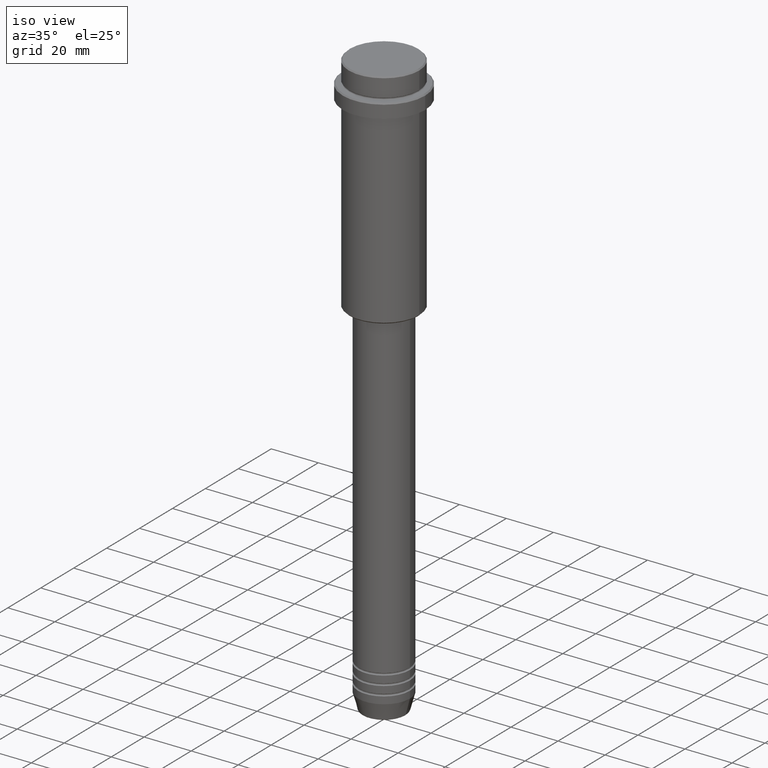
[diagram: clean part render]
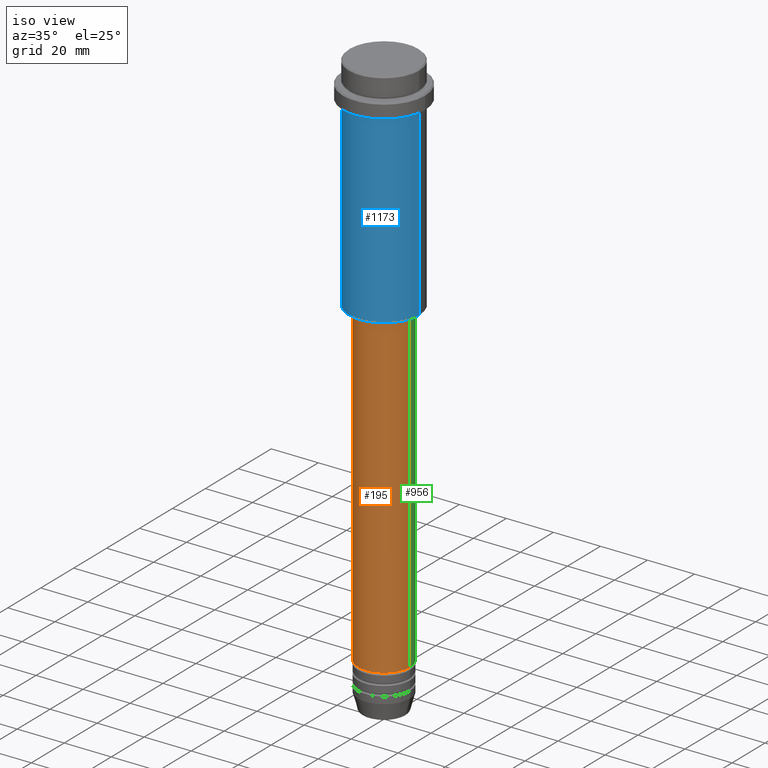
[diagram: same view with three faces highlighted in distinct colors, each labeled with its STEP entity id]
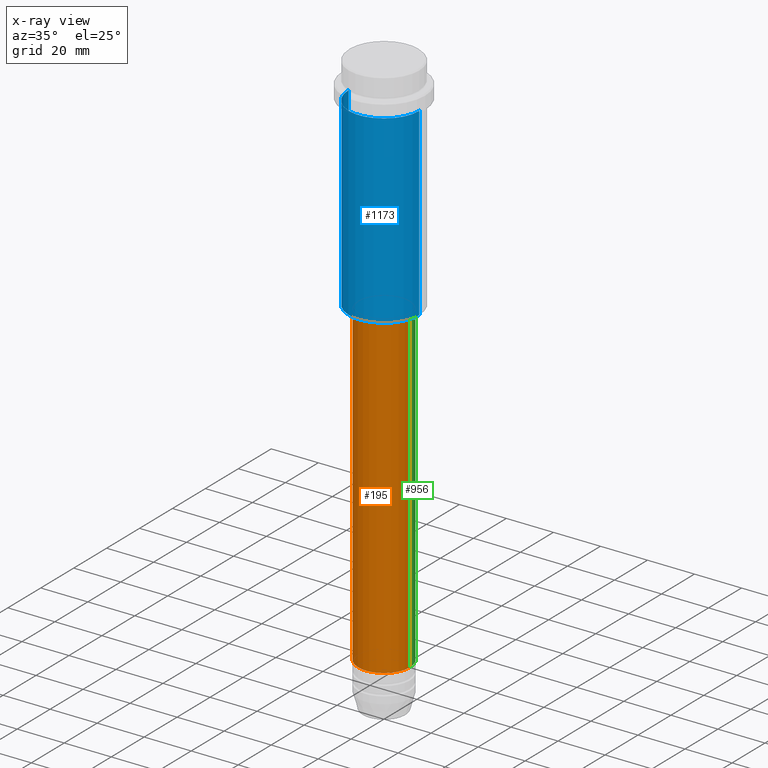
[diagram: x-ray of the same camera — body ghosted, the three highlighted faces saturated]
A machine part, iso view with three faces highlighted in distinct colors.
The next image is the same camera in x-ray (body ghosted, the three faces saturated) — at least one of them is partly hidden behind the body in this view.
Their STEP definitions:

[orange] entity #195 — the highlighted cylindrical surface (edge-blend (fillet) strip) has radius 11 mm, axis along (-0, -0, 1).
#6 = AXIS2_PLACEMENT_3D ( 'NONE', #1197, #1093, #968 ) ;
#62 = LINE ( 'NONE', #1245, #821 ) ;
#71 = ORIENTED_EDGE ( 'NONE', *, *, #422, .F. ) ;
#107 = CYLINDRICAL_SURFACE ( 'NONE', #1119, 11.00000000000000000 ) ;
#130 = VERTEX_POINT ( 'NONE', #740 ) ;
#134 = CIRCLE ( 'NONE', #714, 10.99999999999999822 ) ;
#152 = CARTESIAN_POINT ( 'NONE',  ( 11.00000000000000000, 0.000000000000000000, 0.000000000000000000 ) ) ;
#195 = ADVANCED_FACE ( 'NONE', ( #840 ), #107, .T. ) ;
#212 = DIRECTION ( 'NONE',  ( 1.000000000000000000, 0.000000000000000000, 0.000000000000000000 ) ) ;
#281 = EDGE_CURVE ( 'NONE', #1140, #1150, #134, .T. ) ;
#324 = VERTEX_POINT ( 'NONE', #578 ) ;
#343 = DIRECTION ( 'NONE',  ( 1.000000000000000000, 0.000000000000000000, 0.000000000000000000 ) ) ;
#360 = ORIENTED_EDGE ( 'NONE', *, *, #510, .T. ) ;
#397 = EDGE_LOOP ( 'NONE', ( #71, #1228, #360, #1355 ) ) ;
#407 = VECTOR ( 'NONE', #493, 1000.000000000000000 ) ;
#422 = EDGE_CURVE ( 'NONE', #324, #1140, #62, .T. ) ;
#464 = CARTESIAN_POINT ( 'NONE',  ( 10.99999999999999822, 0.000000000000000000, -96.00000000000000000 ) ) ;
#493 = DIRECTION ( 'NONE',  ( -0.000000000000000000, -0.000000000000000000, 1.000000000000000000 ) ) ;
#510 = EDGE_CURVE ( 'NONE', #130, #1150, #908, .T. ) ;
#568 = DIRECTION ( 'NONE',  ( -0.000000000000000000, -0.000000000000000000, 1.000000000000000000 ) ) ;
#578 = CARTESIAN_POINT ( 'NONE',  ( -11.00000000000000000, 1.347111479062088405E-15, -230.9999999999998863 ) ) ;
#714 = AXIS2_PLACEMENT_3D ( 'NONE', #886, #568, #343 ) ;
#740 = CARTESIAN_POINT ( 'NONE',  ( 11.00000000000000000, 0.000000000000000000, -230.9999999999998863 ) ) ;
#821 = VECTOR ( 'NONE', #1139, 1000.000000000000000 ) ;
#840 = FACE_OUTER_BOUND ( 'NONE', #397, .T. ) ;
#886 = CARTESIAN_POINT ( 'NONE',  ( 0.000000000000000000, 0.000000000000000000, -96.00000000000000000 ) ) ;
#900 = CARTESIAN_POINT ( 'NONE',  ( -10.99999999999999822, 1.347111479062088207E-15, -96.00000000000000000 ) ) ;
#908 = LINE ( 'NONE', #152, #407 ) ;
#968 = DIRECTION ( 'NONE',  ( 1.000000000000000000, 0.000000000000000000, 0.000000000000000000 ) ) ;
#1084 = EDGE_CURVE ( 'NONE', #324, #130, #1172, .T. ) ;
#1093 = DIRECTION ( 'NONE',  ( -0.000000000000000000, -0.000000000000000000, 1.000000000000000000 ) ) ;
#1119 = AXIS2_PLACEMENT_3D ( 'NONE', #1279, #1195, #212 ) ;
#1139 = DIRECTION ( 'NONE',  ( -0.000000000000000000, -0.000000000000000000, 1.000000000000000000 ) ) ;
#1140 = VERTEX_POINT ( 'NONE', #900 ) ;
#1150 = VERTEX_POINT ( 'NONE', #464 ) ;
#1172 = CIRCLE ( 'NONE', #6, 11.00000000000000000 ) ;
#1195 = DIRECTION ( 'NONE',  ( -0.000000000000000000, -0.000000000000000000, 1.000000000000000000 ) ) ;
#1197 = CARTESIAN_POINT ( 'NONE',  ( 0.000000000000000000, 0.000000000000000000, -230.9999999999998863 ) ) ;
#1228 = ORIENTED_EDGE ( 'NONE', *, *, #1084, .T. ) ;
#1245 = CARTESIAN_POINT ( 'NONE',  ( -11.00000000000000000, 1.347111479062088405E-15, 0.000000000000000000 ) ) ;
#1279 = CARTESIAN_POINT ( 'NONE',  ( 0.000000000000000000, 0.000000000000000000, 0.000000000000000000 ) ) ;
#1355 = ORIENTED_EDGE ( 'NONE', *, *, #281, .F. ) ;

[blue] entity #1173 — the highlighted cylindrical surface (partial cylindrical patch) has radius 15 mm, axis along (-0, -0, 1).
#14 = LINE ( 'NONE', #118, #1301 ) ;
#118 = CARTESIAN_POINT ( 'NONE',  ( -15.00000000000000000, 1.836970198721029589E-15, 0.000000000000000000 ) ) ;
#128 = EDGE_CURVE ( 'NONE', #335, #1292, #1410, .T. ) ;
#158 = CARTESIAN_POINT ( 'NONE',  ( 0.000000000000000000, 0.000000000000000000, -94.50000000000007105 ) ) ;
#174 = ORIENTED_EDGE ( 'NONE', *, *, #1068, .F. ) ;
#183 = CIRCLE ( 'NONE', #231, 15.00000000000000000 ) ;
#206 = DIRECTION ( 'NONE',  ( 1.000000000000000000, 0.000000000000000000, 0.000000000000000000 ) ) ;
#231 = AXIS2_PLACEMENT_3D ( 'NONE', #158, #1130, #361 ) ;
#243 = CARTESIAN_POINT ( 'NONE',  ( 0.000000000000000000, 0.000000000000000000, 0.000000000000000000 ) ) ;
#265 = CARTESIAN_POINT ( 'NONE',  ( -15.00000000000000000, 1.836970198721029589E-15, -94.50000000000007105 ) ) ;
#284 = EDGE_CURVE ( 'NONE', #1242, #624, #14, .T. ) ;
#302 = CARTESIAN_POINT ( 'NONE',  ( 15.00000000000000000, 0.000000000000000000, 0.000000000000000000 ) ) ;
#328 = DIRECTION ( 'NONE',  ( -0.000000000000000000, -0.000000000000000000, 1.000000000000000000 ) ) ;
#335 = VERTEX_POINT ( 'NONE', #680 ) ;
#361 = DIRECTION ( 'NONE',  ( -1.000000000000000000, 0.000000000000000000, 0.000000000000000000 ) ) ;
#432 = AXIS2_PLACEMENT_3D ( 'NONE', #1202, #1188, #206 ) ;
#603 = CARTESIAN_POINT ( 'NONE',  ( 15.00000000000000178, 0.000000000000000000, -16.00000000000000000 ) ) ;
#624 = VERTEX_POINT ( 'NONE', #957 ) ;
#631 = DIRECTION ( 'NONE',  ( -0.000000000000000000, -0.000000000000000000, 1.000000000000000000 ) ) ;
#680 = CARTESIAN_POINT ( 'NONE',  ( 15.00000000000000000, 0.000000000000000000, -94.50000000000007105 ) ) ;
#776 = EDGE_CURVE ( 'NONE', #1242, #335, #183, .T. ) ;
#801 = CYLINDRICAL_SURFACE ( 'NONE', #1214, 15.00000000000000000 ) ;
#808 = ORIENTED_EDGE ( 'NONE', *, *, #128, .T. ) ;
#957 = CARTESIAN_POINT ( 'NONE',  ( -15.00000000000000355, 1.836970198721029983E-15, -16.00000000000000000 ) ) ;
#1054 = CIRCLE ( 'NONE', #432, 15.00000000000000178 ) ;
#1068 = EDGE_CURVE ( 'NONE', #624, #1292, #1054, .T. ) ;
#1111 = DIRECTION ( 'NONE',  ( -0.000000000000000000, -0.000000000000000000, 1.000000000000000000 ) ) ;
#1115 = ORIENTED_EDGE ( 'NONE', *, *, #284, .F. ) ;
#1126 = DIRECTION ( 'NONE',  ( 1.000000000000000000, 0.000000000000000000, 0.000000000000000000 ) ) ;
#1130 = DIRECTION ( 'NONE',  ( -0.000000000000000000, -0.000000000000000000, 1.000000000000000000 ) ) ;
#1156 = EDGE_LOOP ( 'NONE', ( #1115, #1232, #808, #174 ) ) ;
#1166 = VECTOR ( 'NONE', #631, 1000.000000000000000 ) ;
#1173 = ADVANCED_FACE ( 'NONE', ( #1335 ), #801, .T. ) ;
#1188 = DIRECTION ( 'NONE',  ( -0.000000000000000000, -0.000000000000000000, 1.000000000000000000 ) ) ;
#1202 = CARTESIAN_POINT ( 'NONE',  ( 0.000000000000000000, 0.000000000000000000, -16.00000000000000000 ) ) ;
#1214 = AXIS2_PLACEMENT_3D ( 'NONE', #243, #1111, #1126 ) ;
#1232 = ORIENTED_EDGE ( 'NONE', *, *, #776, .T. ) ;
#1242 = VERTEX_POINT ( 'NONE', #265 ) ;
#1292 = VERTEX_POINT ( 'NONE', #603 ) ;
#1301 = VECTOR ( 'NONE', #328, 1000.000000000000000 ) ;
#1335 = FACE_OUTER_BOUND ( 'NONE', #1156, .T. ) ;
#1410 = LINE ( 'NONE', #302, #1166 ) ;

[green] entity #956 — the highlighted cylindrical surface (edge-blend (fillet) strip) has radius 11 mm, axis along (-0, -0, 1).
#60 = CARTESIAN_POINT ( 'NONE',  ( 0.000000000000000000, 0.000000000000000000, -230.9999999999998863 ) ) ;
#62 = LINE ( 'NONE', #1245, #821 ) ;
#115 = CIRCLE ( 'NONE', #207, 11.00000000000000000 ) ;
#130 = VERTEX_POINT ( 'NONE', #740 ) ;
#152 = CARTESIAN_POINT ( 'NONE',  ( 11.00000000000000000, 0.000000000000000000, 0.000000000000000000 ) ) ;
#187 = DIRECTION ( 'NONE',  ( -0.000000000000000000, -0.000000000000000000, 1.000000000000000000 ) ) ;
#207 = AXIS2_PLACEMENT_3D ( 'NONE', #60, #927, #286 ) ;
#227 = EDGE_LOOP ( 'NONE', ( #256, #1112, #1370, #1201 ) ) ;
#256 = ORIENTED_EDGE ( 'NONE', *, *, #870, .T. ) ;
#286 = DIRECTION ( 'NONE',  ( 1.000000000000000000, 0.000000000000000000, 0.000000000000000000 ) ) ;
#324 = VERTEX_POINT ( 'NONE', #578 ) ;
#407 = VECTOR ( 'NONE', #493, 1000.000000000000000 ) ;
#412 = DIRECTION ( 'NONE',  ( 1.000000000000000000, 0.000000000000000000, 0.000000000000000000 ) ) ;
#422 = EDGE_CURVE ( 'NONE', #324, #1140, #62, .T. ) ;
#464 = CARTESIAN_POINT ( 'NONE',  ( 10.99999999999999822, 0.000000000000000000, -96.00000000000000000 ) ) ;
#493 = DIRECTION ( 'NONE',  ( -0.000000000000000000, -0.000000000000000000, 1.000000000000000000 ) ) ;
#510 = EDGE_CURVE ( 'NONE', #130, #1150, #908, .T. ) ;
#522 = CYLINDRICAL_SURFACE ( 'NONE', #1212, 11.00000000000000000 ) ;
#578 = CARTESIAN_POINT ( 'NONE',  ( -11.00000000000000000, 1.347111479062088405E-15, -230.9999999999998863 ) ) ;
#718 = FACE_OUTER_BOUND ( 'NONE', #227, .T. ) ;
#722 = DIRECTION ( 'NONE',  ( 1.000000000000000000, 0.000000000000000000, 0.000000000000000000 ) ) ;
#740 = CARTESIAN_POINT ( 'NONE',  ( 11.00000000000000000, 0.000000000000000000, -230.9999999999998863 ) ) ;
#803 = AXIS2_PLACEMENT_3D ( 'NONE', #1395, #187, #722 ) ;
#821 = VECTOR ( 'NONE', #1139, 1000.000000000000000 ) ;
#833 = EDGE_CURVE ( 'NONE', #1150, #1140, #1354, .T. ) ;
#870 = EDGE_CURVE ( 'NONE', #130, #324, #115, .T. ) ;
#900 = CARTESIAN_POINT ( 'NONE',  ( -10.99999999999999822, 1.347111479062088207E-15, -96.00000000000000000 ) ) ;
#908 = LINE ( 'NONE', #152, #407 ) ;
#927 = DIRECTION ( 'NONE',  ( -0.000000000000000000, -0.000000000000000000, 1.000000000000000000 ) ) ;
#952 = CARTESIAN_POINT ( 'NONE',  ( 0.000000000000000000, 0.000000000000000000, 0.000000000000000000 ) ) ;
#956 = ADVANCED_FACE ( 'NONE', ( #718 ), #522, .T. ) ;
#1112 = ORIENTED_EDGE ( 'NONE', *, *, #422, .T. ) ;
#1139 = DIRECTION ( 'NONE',  ( -0.000000000000000000, -0.000000000000000000, 1.000000000000000000 ) ) ;
#1140 = VERTEX_POINT ( 'NONE', #900 ) ;
#1150 = VERTEX_POINT ( 'NONE', #464 ) ;
#1201 = ORIENTED_EDGE ( 'NONE', *, *, #510, .F. ) ;
#1212 = AXIS2_PLACEMENT_3D ( 'NONE', #952, #1400, #412 ) ;
#1245 = CARTESIAN_POINT ( 'NONE',  ( -11.00000000000000000, 1.347111479062088405E-15, 0.000000000000000000 ) ) ;
#1354 = CIRCLE ( 'NONE', #803, 10.99999999999999822 ) ;
#1370 = ORIENTED_EDGE ( 'NONE', *, *, #833, .F. ) ;
#1395 = CARTESIAN_POINT ( 'NONE',  ( 0.000000000000000000, 0.000000000000000000, -96.00000000000000000 ) ) ;
#1400 = DIRECTION ( 'NONE',  ( -0.000000000000000000, -0.000000000000000000, 1.000000000000000000 ) ) ;